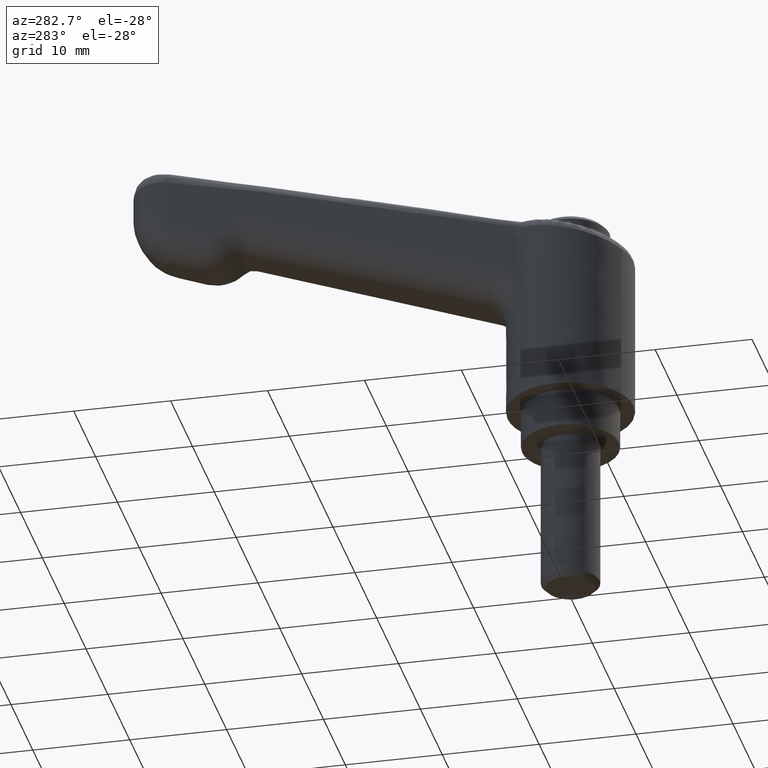
[diagram: clean part render]
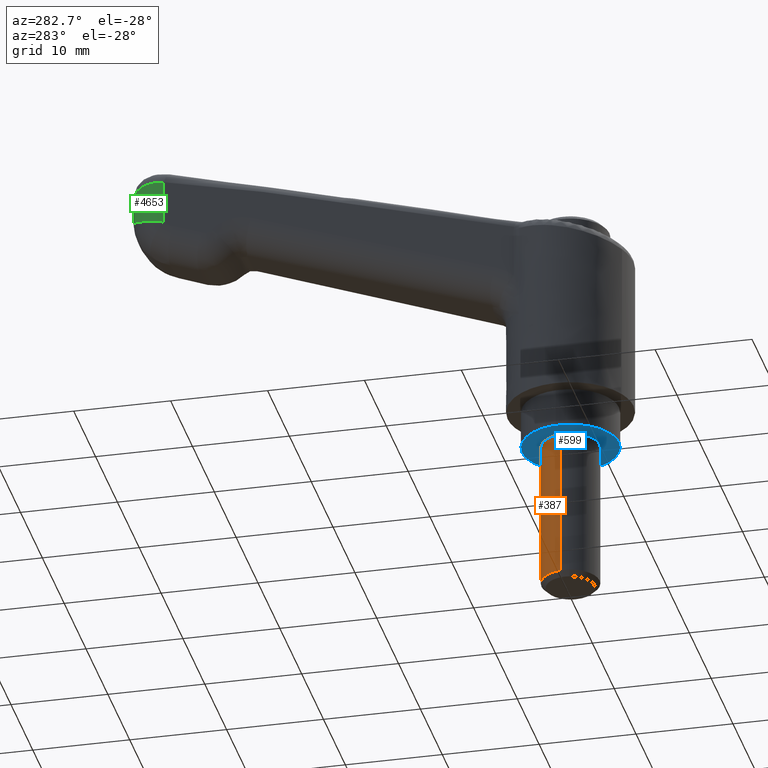
[diagram: same view with three faces highlighted in distinct colors, each labeled with its STEP entity id]
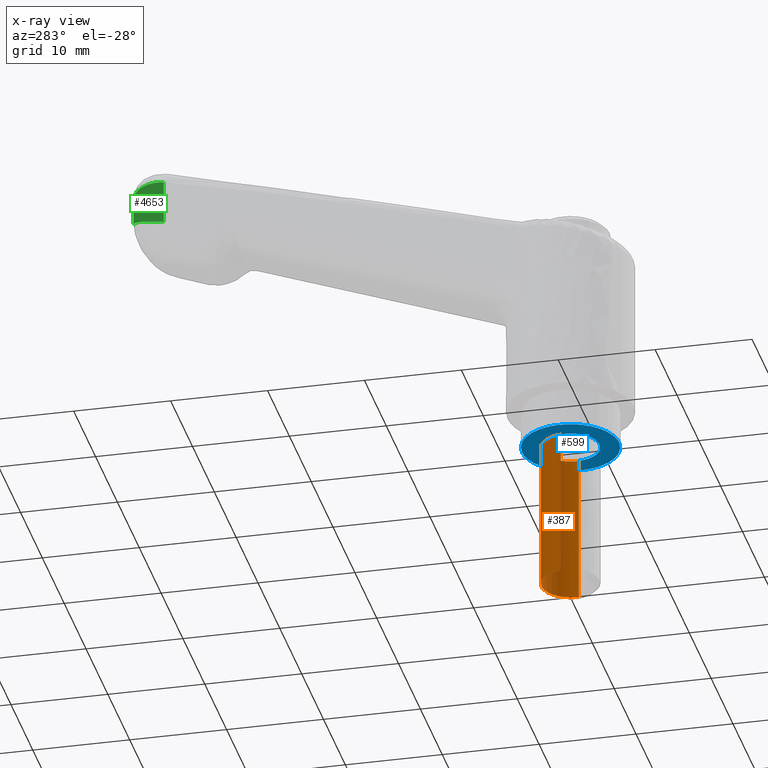
[diagram: x-ray of the same camera — body ghosted, the three highlighted faces saturated]
A machine part, auxiliary view with three faces highlighted in distinct colors.
The next image is the same camera in x-ray (body ghosted, the three faces saturated) — at least one of them is partly hidden behind the body in this view.
Their STEP definitions:

[orange] entity #387 — the highlighted face is a freeform B-spline surface patch.
#118=CARTESIAN_POINT('',(0.026179607142161,-2.999885769274892,-15.499999999911980));
#119=VERTEX_POINT('',#118);
#125=CARTESIAN_POINT('',(-0.183143574130145,-2.994404520309612,-15.500000000000011));
#126=VERTEX_POINT('',#125);
#127=CARTESIAN_POINT('',(-0.183143574130145,-2.994404520309612,-15.500000000000004));
#128=CARTESIAN_POINT('',(-0.091657264792353,-3.0,-15.500000000000005));
#129=CARTESIAN_POINT('',(0.0,-3.0,-15.500000000000000));
#130=CARTESIAN_POINT('',(0.013090053108412,-3.0,-15.500000000000002));
#131=CARTESIAN_POINT('',(0.026179607142161,-2.999885769274891,-15.499999999911985));
#139=(BOUNDED_CURVE()B_SPLINE_CURVE(2,(#127,#128,#129,#130,#131),.UNSPECIFIED.,.F.,.U.)B_SPLINE_CURVE_WITH_KNOTS((3,2,3),(0.739333080050882,0.750000000000000,0.751539894410881),.UNSPECIFIED.)CURVE()GEOMETRIC_REPRESENTATION_ITEM()RATIONAL_B_SPLINE_CURVE((0.976072294160260,0.987502925925110,1.0,0.998195901477457,0.996414027924767))REPRESENTATION_ITEM(''));
#140=EDGE_CURVE('',#126,#119,#139,.T.);
#180=CARTESIAN_POINT('',(0.354102704054961,2.979028579080933,-15.500000000000000));
#181=VERTEX_POINT('',#180);
#197=CARTESIAN_POINT('',(3.0,0.0,-15.500000000000000));
#198=VERTEX_POINT('',#197);
#199=CARTESIAN_POINT('',(3.0,0.0,-15.500000000000000));
#200=CARTESIAN_POINT('',(3.000000000000001,2.664523577701544,-15.499999999999998));
#201=CARTESIAN_POINT('',(0.354102704054961,2.979028579080933,-15.500000000000002));
#209=(BOUNDED_CURVE()B_SPLINE_CURVE(2,(#199,#200,#201),.UNSPECIFIED.,.F.,.U.)B_SPLINE_CURVE_WITH_KNOTS((3,3),(0.0,0.229562473506036),.UNSPECIFIED.)CURVE()GEOMETRIC_REPRESENTATION_ITEM()RATIONAL_B_SPLINE_CURVE((1.0,0.731050832864158,0.956026754169052))REPRESENTATION_ITEM(''));
#210=EDGE_CURVE('',#198,#181,#209,.T.);
#212=CARTESIAN_POINT('',(0.026179607142161,-2.999885769274892,-15.499999999911978));
#213=CARTESIAN_POINT('',(3.000000000000000,-2.973933630503526,-15.500000000000002));
#214=CARTESIAN_POINT('',(3.0,0.0,-15.500000000000000));
#222=(BOUNDED_CURVE()B_SPLINE_CURVE(2,(#212,#213,#214),.UNSPECIFIED.,.F.,.U.)B_SPLINE_CURVE_WITH_KNOTS((3,3),(0.751539894410881,1.0),.UNSPECIFIED.)CURVE()GEOMETRIC_REPRESENTATION_ITEM()RATIONAL_B_SPLINE_CURVE((0.996414027924767,0.708910879709090,1.0))REPRESENTATION_ITEM(''));
#223=EDGE_CURVE('',#119,#198,#222,.T.);
#285=CARTESIAN_POINT('',(-0.183143598829834,-2.994404518798948,2.137179E-015));
#286=VERTEX_POINT('',#285);
#287=CARTESIAN_POINT('',(-0.183143574130145,-2.994404520309612,-15.500000000000011));
#288=CARTESIAN_POINT('',(-0.183143598829834,-2.994404518798948,2.137179E-015));
#289=QUASI_UNIFORM_CURVE('',1,(#287,#288),.UNSPECIFIED.,.F.,.U.);
#290=EDGE_CURVE('',#126,#286,#289,.T.);
#307=CARTESIAN_POINT('',(0.354102704054961,2.979028579080933,3.123371E-016));
#308=VERTEX_POINT('',#307);
#324=CARTESIAN_POINT('',(0.354102704054961,2.979028579080933,-15.500000000000000));
#325=CARTESIAN_POINT('',(0.354102704054961,2.979028579080933,3.123371E-016));
#326=QUASI_UNIFORM_CURVE('',1,(#324,#325),.UNSPECIFIED.,.F.,.U.);
#327=EDGE_CURVE('',#181,#308,#326,.T.);
#332=CARTESIAN_POINT('',(-0.183145618604571,-2.994404395265600,-15.887500000000010));
#333=CARTESIAN_POINT('',(2.811258776661029,-3.177550013870171,-15.887500000000006));
#334=CARTESIAN_POINT('',(2.994404395265600,-0.183145618604571,-15.887500000000010));
#335=CARTESIAN_POINT('',(3.167358590197582,2.644630472518504,-15.887500000000010));
#336=CARTESIAN_POINT('',(0.354102703970275,2.979028579091000,-15.887500000000005));
#337=CARTESIAN_POINT('',(-0.183145618604571,-2.994404395265600,0.397187500000001));
#338=CARTESIAN_POINT('',(2.811258776661029,-3.177550013870171,0.397187500000001));
#339=CARTESIAN_POINT('',(2.994404395265600,-0.183145618604571,0.397187500000001));
#340=CARTESIAN_POINT('',(3.167358590197582,2.644630472518504,0.397187500000001));
#341=CARTESIAN_POINT('',(0.354102703970275,2.979028579091000,0.397187500000001));
#349=(BOUNDED_SURFACE()B_SPLINE_SURFACE(2,1,((#332,#337),(#333,#338),(#334,#339),(#335,#340),(#336,#341)),.UNSPECIFIED.,.F.,.F.,.U.)B_SPLINE_SURFACE_WITH_KNOTS((3,2,3),(2,2),(0.0,4.970562748477139,9.742302987015194),(0.0,16.284687500000011),.UNSPECIFIED.)GEOMETRIC_REPRESENTATION_ITEM()RATIONAL_B_SPLINE_SURFACE(((1.0,1.0),(0.707106781186548,0.707106781186548),(1.0,1.0),(0.718822509939086,0.718822509939086),(0.977505800795127,0.977505800795127)))REPRESENTATION_ITEM('')SURFACE());
#350=ORIENTED_EDGE('',*,*,#210,.T.);
#351=ORIENTED_EDGE('',*,*,#327,.T.);
#352=CARTESIAN_POINT('',(3.0,0.0,0.0));
#353=VERTEX_POINT('',#352);
#354=CARTESIAN_POINT('',(3.0,0.0,0.0));
#355=CARTESIAN_POINT('',(3.000000000000001,2.664523577701544,0.0));
#356=CARTESIAN_POINT('',(0.354102704054961,2.979028579080933,3.123371E-016));
#364=(BOUNDED_CURVE()B_SPLINE_CURVE(2,(#354,#355,#356),.UNSPECIFIED.,.F.,.U.)B_SPLINE_CURVE_WITH_KNOTS((3,3),(0.0,0.229562473506036),.UNSPECIFIED.)CURVE()GEOMETRIC_REPRESENTATION_ITEM()RATIONAL_B_SPLINE_CURVE((1.0,0.731050832864158,0.956026754169052))REPRESENTATION_ITEM(''));
#365=EDGE_CURVE('',#353,#308,#364,.T.);
#366=ORIENTED_EDGE('',*,*,#365,.F.);
#367=CARTESIAN_POINT('',(-0.183143598829834,-2.994404518798948,2.137179E-015));
#368=CARTESIAN_POINT('',(-0.091657277176824,-3.000000000000000,0.0));
#369=CARTESIAN_POINT('',(0.0,-3.0,0.0));
#370=CARTESIAN_POINT('',(3.0,-3.0,0.0));
#371=CARTESIAN_POINT('',(3.0,0.0,0.0));
#379=(BOUNDED_CURVE()B_SPLINE_CURVE(2,(#367,#368,#369,#370,#371),.UNSPECIFIED.,.F.,.U.)B_SPLINE_CURVE_WITH_KNOTS((3,2,3),(0.739333078627610,0.750000000000000,1.0),.UNSPECIFIED.)CURVE()GEOMETRIC_REPRESENTATION_ITEM()RATIONAL_B_SPLINE_CURVE((0.976072291109914,0.987502924257643,1.0,0.707106781186548,1.0))REPRESENTATION_ITEM(''));
#380=EDGE_CURVE('',#286,#353,#379,.T.);
#381=ORIENTED_EDGE('',*,*,#380,.F.);
#382=ORIENTED_EDGE('',*,*,#290,.F.);
#383=ORIENTED_EDGE('',*,*,#140,.T.);
#384=ORIENTED_EDGE('',*,*,#223,.T.);
#385=EDGE_LOOP('',(#350,#351,#366,#381,#382,#383,#384));
#386=FACE_OUTER_BOUND('',#385,.T.);
#387=ADVANCED_FACE('',(#386),#349,.T.);

[blue] entity #599 — the highlighted face is a freeform B-spline surface patch.
#285=CARTESIAN_POINT('',(-0.183143598829834,-2.994404518798948,2.137179E-015));
#286=VERTEX_POINT('',#285);
#292=CARTESIAN_POINT('',(-3.0,0.0,0.0));
#293=VERTEX_POINT('',#292);
#294=CARTESIAN_POINT('',(-3.0,0.0,0.0));
#295=CARTESIAN_POINT('',(-3.000000000000000,-2.822120107839660,0.0));
#296=CARTESIAN_POINT('',(-0.183143598829834,-2.994404518798948,2.137179E-015));
#304=(BOUNDED_CURVE()B_SPLINE_CURVE(2,(#294,#295,#296),.UNSPECIFIED.,.F.,.U.)B_SPLINE_CURVE_WITH_KNOTS((3,3),(0.500000000000000,0.739333078627610),.UNSPECIFIED.)CURVE()GEOMETRIC_REPRESENTATION_ITEM()RATIONAL_B_SPLINE_CURVE((1.0,0.719603856928905,0.976072291109914))REPRESENTATION_ITEM(''));
#305=EDGE_CURVE('',#293,#286,#304,.T.);
#307=CARTESIAN_POINT('',(0.354102704054961,2.979028579080933,3.123371E-016));
#308=VERTEX_POINT('',#307);
#309=CARTESIAN_POINT('',(0.354102704054961,2.979028579080933,3.123371E-016));
#310=CARTESIAN_POINT('',(0.177672359041311,3.000000000000000,0.0));
#311=CARTESIAN_POINT('',(0.0,3.0,0.0));
#312=CARTESIAN_POINT('',(-3.0,3.0,0.0));
#313=CARTESIAN_POINT('',(-3.0,0.0,0.0));
#321=(BOUNDED_CURVE()B_SPLINE_CURVE(2,(#309,#310,#311,#312,#313),.UNSPECIFIED.,.F.,.U.)B_SPLINE_CURVE_WITH_KNOTS((3,2,3),(0.229562473506036,0.250000000000000,0.500000000000000),.UNSPECIFIED.)CURVE()GEOMETRIC_REPRESENTATION_ITEM()RATIONAL_B_SPLINE_CURVE((0.956026754169052,0.976055948322390,1.0,0.707106781186548,1.0))REPRESENTATION_ITEM(''));
#322=EDGE_CURVE('',#308,#293,#321,.T.);
#352=CARTESIAN_POINT('',(3.0,0.0,0.0));
#353=VERTEX_POINT('',#352);
#354=CARTESIAN_POINT('',(3.0,0.0,0.0));
#355=CARTESIAN_POINT('',(3.000000000000001,2.664523577701544,0.0));
#356=CARTESIAN_POINT('',(0.354102704054961,2.979028579080933,3.123371E-016));
#364=(BOUNDED_CURVE()B_SPLINE_CURVE(2,(#354,#355,#356),.UNSPECIFIED.,.F.,.U.)B_SPLINE_CURVE_WITH_KNOTS((3,3),(0.0,0.229562473506036),.UNSPECIFIED.)CURVE()GEOMETRIC_REPRESENTATION_ITEM()RATIONAL_B_SPLINE_CURVE((1.0,0.731050832864158,0.956026754169052))REPRESENTATION_ITEM(''));
#365=EDGE_CURVE('',#353,#308,#364,.T.);
#367=CARTESIAN_POINT('',(-0.183143598829834,-2.994404518798948,2.137179E-015));
#368=CARTESIAN_POINT('',(-0.091657277176824,-3.000000000000000,0.0));
#369=CARTESIAN_POINT('',(0.0,-3.0,0.0));
#370=CARTESIAN_POINT('',(3.0,-3.0,0.0));
#371=CARTESIAN_POINT('',(3.0,0.0,0.0));
#379=(BOUNDED_CURVE()B_SPLINE_CURVE(2,(#367,#368,#369,#370,#371),.UNSPECIFIED.,.F.,.U.)B_SPLINE_CURVE_WITH_KNOTS((3,2,3),(0.739333078627610,0.750000000000000,1.0),.UNSPECIFIED.)CURVE()GEOMETRIC_REPRESENTATION_ITEM()RATIONAL_B_SPLINE_CURVE((0.976072291109914,0.987502924257643,1.0,0.707106781186548,1.0))REPRESENTATION_ITEM(''));
#380=EDGE_CURVE('',#286,#353,#379,.T.);
#406=CARTESIAN_POINT('',(-5.0,0.0,0.0));
#407=VERTEX_POINT('',#406);
#408=CARTESIAN_POINT('',(-0.392295478704182,-4.984586668660526,-8.604228E-016));
#409=VERTEX_POINT('',#408);
#410=CARTESIAN_POINT('',(-5.0,0.0,0.0));
#411=CARTESIAN_POINT('',(-5.0,-4.621952458170204,0.0));
#412=CARTESIAN_POINT('',(-0.392295478704181,-4.984586668660526,-8.604228E-016));
#420=(BOUNDED_CURVE()B_SPLINE_CURVE(2,(#410,#411,#412),.UNSPECIFIED.,.F.,.U.)B_SPLINE_CURVE_WITH_KNOTS((3,3),(0.0,0.236331300628299),.UNSPECIFIED.)CURVE()GEOMETRIC_REPRESENTATION_ITEM()RATIONAL_B_SPLINE_CURVE((1.0,0.723120658610431,0.969723356162492))REPRESENTATION_ITEM(''));
#421=EDGE_CURVE('',#407,#409,#420,.T.);
#462=CARTESIAN_POINT('',(0.392295478704182,4.984586668660526,9.159340E-016));
#463=VERTEX_POINT('',#462);
#469=CARTESIAN_POINT('',(0.392295478704182,4.984586668660526,9.159340E-016));
#470=CARTESIAN_POINT('',(0.196450535103606,5.0,0.0));
#471=CARTESIAN_POINT('',(0.0,5.0,0.0));
#472=CARTESIAN_POINT('',(-5.000000000000001,5.000000000000001,0.0));
#473=CARTESIAN_POINT('',(-5.0,0.0,0.0));
#481=(BOUNDED_CURVE()B_SPLINE_CURVE(2,(#469,#470,#471,#472,#473),.UNSPECIFIED.,.F.,.U.)B_SPLINE_CURVE_WITH_KNOTS((3,2,3),(0.736331300628299,0.750000000000000,1.0),.UNSPECIFIED.)CURVE()GEOMETRIC_REPRESENTATION_ITEM()RATIONAL_B_SPLINE_CURVE((0.969723356162492,0.983986122576116,1.0,0.707106781186548,1.0))REPRESENTATION_ITEM(''));
#482=EDGE_CURVE('',#463,#407,#481,.T.);
#505=CARTESIAN_POINT('',(5.0,0.0,0.0));
#506=VERTEX_POINT('',#505);
#507=CARTESIAN_POINT('',(-0.392295478704181,-4.984586668660526,-8.604228E-016));
#508=CARTESIAN_POINT('',(-0.196450535103605,-5.0,0.0));
#509=CARTESIAN_POINT('',(0.0,-5.0,0.0));
#510=CARTESIAN_POINT('',(5.000000000000001,-5.000000000000001,0.0));
#511=CARTESIAN_POINT('',(5.0,0.0,0.0));
#519=(BOUNDED_CURVE()B_SPLINE_CURVE(2,(#507,#508,#509,#510,#511),.UNSPECIFIED.,.F.,.U.)B_SPLINE_CURVE_WITH_KNOTS((3,2,3),(0.236331300628299,0.250000000000000,0.500000000000000),.UNSPECIFIED.)CURVE()GEOMETRIC_REPRESENTATION_ITEM()RATIONAL_B_SPLINE_CURVE((0.969723356162492,0.983986122576117,1.0,0.707106781186548,1.0))REPRESENTATION_ITEM(''));
#520=EDGE_CURVE('',#409,#506,#519,.T.);
#522=CARTESIAN_POINT('',(5.0,0.0,0.0));
#523=CARTESIAN_POINT('',(5.000000000000001,4.621952458170187,0.0));
#524=CARTESIAN_POINT('',(0.392295478704182,4.984586668660526,9.159340E-016));
#532=(BOUNDED_CURVE()B_SPLINE_CURVE(2,(#522,#523,#524),.UNSPECIFIED.,.F.,.U.)B_SPLINE_CURVE_WITH_KNOTS((3,3),(0.500000000000000,0.736331300628299),.UNSPECIFIED.)CURVE()GEOMETRIC_REPRESENTATION_ITEM()RATIONAL_B_SPLINE_CURVE((1.0,0.723120658610432,0.969723356162490))REPRESENTATION_ITEM(''));
#533=EDGE_CURVE('',#506,#463,#532,.T.);
#582=CARTESIAN_POINT('',(-5.499499980618060,5.497973763634156,0.0));
#583=CARTESIAN_POINT('',(5.499500248838961,5.497973763634156,0.0));
#584=CARTESIAN_POINT('',(-5.499499980618060,-5.497974031855059,0.0));
#585=CARTESIAN_POINT('',(5.499500248838961,-5.497974031855059,0.0));
#586=B_SPLINE_SURFACE_WITH_KNOTS('',1,1,((#582,#584),(#583,#585)),.UNSPECIFIED.,.F.,.F.,.U.,(2,2),(2,2),(0.0,10.999000229457019),(0.0,10.995947795489220),.UNSPECIFIED.);
#587=ORIENTED_EDGE('',*,*,#482,.F.);
#588=ORIENTED_EDGE('',*,*,#533,.F.);
#589=ORIENTED_EDGE('',*,*,#520,.F.);
#590=ORIENTED_EDGE('',*,*,#421,.F.);
#591=EDGE_LOOP('',(#587,#588,#589,#590));
#592=FACE_OUTER_BOUND('',#591,.T.);
#593=ORIENTED_EDGE('',*,*,#305,.T.);
#594=ORIENTED_EDGE('',*,*,#380,.T.);
#595=ORIENTED_EDGE('',*,*,#365,.T.);
#596=ORIENTED_EDGE('',*,*,#322,.T.);
#597=EDGE_LOOP('',(#593,#594,#595,#596));
#598=FACE_BOUND('',#597,.T.);
#599=ADVANCED_FACE('',(#592,#598),#586,.T.);

[green] entity #4653 — the highlighted face is a freeform B-spline surface patch.
#2531=CARTESIAN_POINT('',(41.081942628878487,3.999144946134395,28.444855264174748));
#2532=VERTEX_POINT('',#2531);
#2628=CARTESIAN_POINT('',(45.0,-0.000015641485440,30.662410843262951));
#2629=VERTEX_POINT('',#2628);
#2630=CARTESIAN_POINT('',(45.0,-0.000015641485440,30.662410843262951));
#2631=CARTESIAN_POINT('',(44.999999944226182,0.031270363513726,30.648863676924631));
#2632=CARTESIAN_POINT('',(44.999625191813649,0.063235898334178,30.635022291434819));
#2633=CARTESIAN_POINT('',(44.998121765757482,0.126570559447724,30.607593884920650));
#2634=CARTESIAN_POINT('',(44.994739310967070,0.221487009446116,30.566482515123280));
#2635=CARTESIAN_POINT('',(44.987987991729263,0.316130902287121,30.525454482206840));
#2636=CARTESIAN_POINT('',(44.970002204119112,0.505039079579945,30.443470395197799));
#2637=CARTESIAN_POINT('',(44.952011920446822,0.630631082778202,30.388841235473489));
#2638=CARTESIAN_POINT('',(44.904059008516072,0.880003725738597,30.279870821649791));
#2639=CARTESIAN_POINT('',(44.874214354359211,1.003256512487470,30.225760667869281));
#2640=CARTESIAN_POINT('',(44.820675478685231,1.185923343119937,30.144998604780259));
#2641=CARTESIAN_POINT('',(44.801364992810328,1.246443018129408,30.118145245422010));
#2642=CARTESIAN_POINT('',(44.759793840894112,1.366726586173039,30.064547555641980));
#2643=CARTESIAN_POINT('',(44.737512017772588,1.426528994151118,30.037785460575751));
#2644=CARTESIAN_POINT('',(44.619464600570190,1.721645473847278,29.905065341150308));
#2645=CARTESIAN_POINT('',(44.503453970181802,1.946912273030040,29.801670208677340));
#2646=CARTESIAN_POINT('',(44.297263637606541,2.268071049019407,29.649449500367862));
#2647=CARTESIAN_POINT('',(44.223139444490528,2.372317655505154,29.599191626088022));
#2648=CARTESIAN_POINT('',(44.063726305804472,2.574896832439544,29.499447960423169));
#2649=CARTESIAN_POINT('',(43.979003091576381,2.672491680030416,29.450322935054480));
#2650=CARTESIAN_POINT('',(43.799878850350147,2.859605609482824,29.353604732789879));
#2651=CARTESIAN_POINT('',(43.705999978641287,2.948566244760232,29.306297566053580));
#2652=CARTESIAN_POINT('',(43.510700966357739,3.116545378644477,29.213958579653671));
#2653=CARTESIAN_POINT('',(43.409144402823351,3.195707067431789,29.168853554509369));
#2654=CARTESIAN_POINT('',(43.198250528858033,3.344280440373045,29.080534695910249));
#2655=CARTESIAN_POINT('',(43.088913608011808,3.413692982207298,29.037321391366859));
#2656=CARTESIAN_POINT('',(42.918947801124837,3.510236602551565,28.973770906799150));
#2657=CARTESIAN_POINT('',(42.861297535462043,3.541153199534542,28.952799238866671));
#2658=CARTESIAN_POINT('',(42.743965484566672,3.600385798941233,28.911257011702851));
#2659=CARTESIAN_POINT('',(42.684210307347229,3.628729592078583,28.890663284032499));
#2660=CARTESIAN_POINT('',(42.502998506691632,3.709224023527342,28.829841007762589));
#2661=CARTESIAN_POINT('',(42.378935689239647,3.757106713284005,28.790356465185049));
#2662=CARTESIAN_POINT('',(42.128105289536627,3.839881812214760,28.714407864174490));
#2663=CARTESIAN_POINT('',(42.001070543470327,3.874931699128879,28.677843381937969));
#2664=CARTESIAN_POINT('',(41.615248672236561,3.961162122712469,28.571923086602730));
#2665=CARTESIAN_POINT('',(41.351786986550842,3.993615612637141,28.506320143834628));
#2666=CARTESIAN_POINT('',(41.081942628878487,3.999144946134395,28.444855264174748));
#2667=B_SPLINE_CURVE_WITH_KNOTS('',3,(#2630,#2631,#2632,#2633,#2634,#2635,#2636,#2637,#2638,#2639,#2640,#2641,#2642,#2643,#2644,#2645,#2646,#2647,#2648,#2649,#2650,#2651,#2652,#2653,#2654,#2655,#2656,#2657,#2658,#2659,#2660,#2661,#2662,#2663,#2664,#2665,#2666),.UNSPECIFIED.,.F.,.U.,(4,2,1,2,2,2,2,2,2,2,2,2,2,2,2,2,2,2,4),(0.0,0.015623837191080,0.031248837191079,0.062498837191079,0.124998837191079,0.187498837191078,0.218748837191078,0.249998837191078,0.374998837191080,0.437498837191080,0.499998837191081,0.562498837191082,0.624998837191082,0.687498837191083,0.718748837191083,0.749998837191083,0.812498837191083,0.874998837191083,0.999998837191080),.UNSPECIFIED.);
#2668=EDGE_CURVE('',#2629,#2532,#2667,.T.);
#4083=CARTESIAN_POINT('',(45.0,-0.000015641485440,33.000003780693703));
#4084=VERTEX_POINT('',#4083);
#4098=CARTESIAN_POINT('',(41.081942628878487,3.999144946134395,32.970756681665392));
#4099=VERTEX_POINT('',#4098);
#4100=CARTESIAN_POINT('',(41.081942628878487,3.999144946134395,32.970756681665392));
#4101=CARTESIAN_POINT('',(41.164203855452207,3.995992851749290,32.984655344231399));
#4102=CARTESIAN_POINT('',(41.330329775980310,3.989627221146135,33.012723587425249));
#4103=CARTESIAN_POINT('',(41.581728036619673,3.960021267220378,33.047958540493141));
#4104=CARTESIAN_POINT('',(41.836325152022127,3.914541547823718,33.078729646879452));
#4105=CARTESIAN_POINT('',(42.092931649155702,3.850851637300519,33.104475412364053));
#4106=CARTESIAN_POINT('',(42.350134843764422,3.768536186689408,33.125385936110163));
#4107=CARTESIAN_POINT('',(42.606432692499162,3.666756752090917,33.141275330609133));
#4108=CARTESIAN_POINT('',(42.987849811246733,3.483644238912743,33.158466288653877));
#4109=CARTESIAN_POINT('',(43.562688273557832,3.114009911258649,33.157878921903233));
#4110=CARTESIAN_POINT('',(44.131830103060160,2.536949188803796,33.146143328880910));
#4111=CARTESIAN_POINT('',(44.579281836269288,1.834135787861193,33.112793957106817));
#4112=CARTESIAN_POINT('',(44.822670029293612,1.236627673038210,33.066571774754159));
#4113=CARTESIAN_POINT('',(44.946282666486198,0.696306833667371,33.027256562035362));
#4114=CARTESIAN_POINT('',(44.993324885101529,0.317235710012089,33.005500051009427));
#4115=CARTESIAN_POINT('',(44.998000947649253,0.094994267653096,33.001649794609818));
#4116=CARTESIAN_POINT('',(45.0,-0.000015641485440,33.000003780693703));
#4117=B_SPLINE_CURVE_WITH_KNOTS('',3,(#4100,#4101,#4102,#4103,#4104,#4105,#4106,#4107,#4108,#4109,#4110,#4111,#4112,#4113,#4114,#4115,#4116),.UNSPECIFIED.,.F.,.U.,(4,1,1,1,1,1,1,1,1,1,1,1,1,1,4),(0.0,0.040324118676637,0.081434250541401,0.123350469669858,0.166091712598150,0.209675838715303,0.254119689516424,0.299439146249360,0.414111148402849,0.582549392941568,0.686070816714058,0.815573134233637,0.892629747616208,0.954098399403441,1.000000000000000),.UNSPECIFIED.);
#4118=EDGE_CURVE('',#4099,#4084,#4117,.T.);
#4620=CARTESIAN_POINT('',(45.0,-0.000015641485440,30.662410843262951));
#4621=CARTESIAN_POINT('',(45.0,-0.000015641485440,33.000003780693703));
#4622=QUASI_UNIFORM_CURVE('',1,(#4620,#4621),.UNSPECIFIED.,.F.,.U.);
#4623=EDGE_CURVE('',#2629,#4084,#4622,.T.);
#4629=CARTESIAN_POINT('',(41.047040691922717,3.999707745613150,28.327048267108768));
#4630=CARTESIAN_POINT('',(41.047040691922717,3.999707745613150,33.277887318806492));
#4631=CARTESIAN_POINT('',(45.188875506040404,3.950995683145489,28.327048267108776));
#4632=CARTESIAN_POINT('',(45.188875506040404,3.950995683145489,33.277887318806485));
#4633=CARTESIAN_POINT('',(44.995645167207442,-0.186616010648606,28.327048267108768));
#4634=CARTESIAN_POINT('',(44.995645167207442,-0.186616010648606,33.277887318806492));
#4642=(BOUNDED_SURFACE()B_SPLINE_SURFACE(1,2,((#4629,#4631,#4633),(#4630,#4632,#4634)),.UNSPECIFIED.,.F.,.F.,.U.)B_SPLINE_SURFACE_WITH_KNOTS((2,2),(3,3),(0.0,4.950839051697720),(0.0,6.791597059353683),.UNSPECIFIED.)GEOMETRIC_REPRESENTATION_ITEM()RATIONAL_B_SPLINE_SURFACE(((1.0,0.694658370458997,1.0),(1.0,0.694658370458997,1.0)))REPRESENTATION_ITEM('')SURFACE());
#4643=ORIENTED_EDGE('',*,*,#4623,.F.);
#4644=ORIENTED_EDGE('',*,*,#2668,.T.);
#4645=CARTESIAN_POINT('',(41.081942628878487,3.999144946134395,32.970756681665392));
#4646=CARTESIAN_POINT('',(41.081942628878487,3.999144946134395,28.444855264174748));
#4647=QUASI_UNIFORM_CURVE('',1,(#4645,#4646),.UNSPECIFIED.,.F.,.U.);
#4648=EDGE_CURVE('',#4099,#2532,#4647,.T.);
#4649=ORIENTED_EDGE('',*,*,#4648,.F.);
#4650=ORIENTED_EDGE('',*,*,#4118,.T.);
#4651=EDGE_LOOP('',(#4643,#4644,#4649,#4650));
#4652=FACE_OUTER_BOUND('',#4651,.T.);
#4653=ADVANCED_FACE('',(#4652),#4642,.T.);